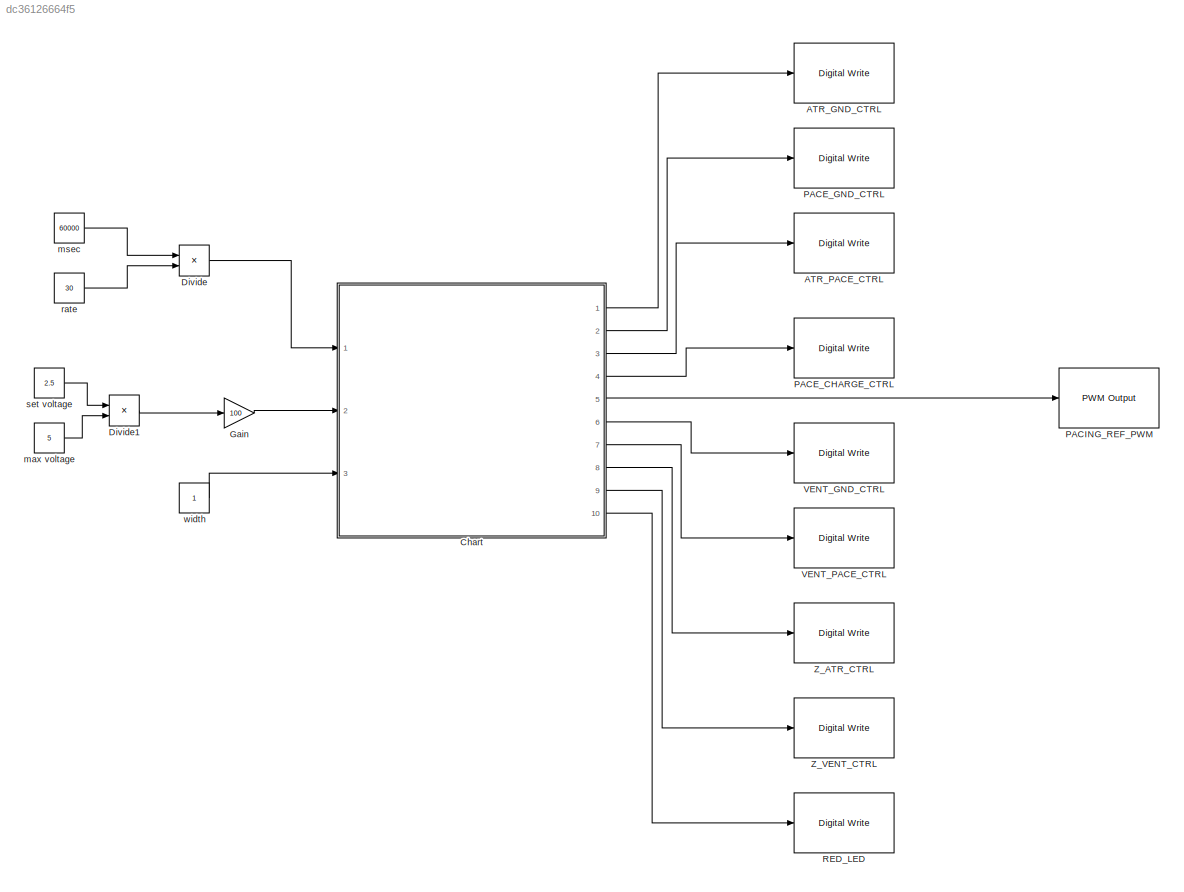
MODEL slx_dc36126664f5
KIND model
CONFIG AbsTol = auto
CONFIG EnableMultiTasking = on
CONFIG FixedStep = 1e-3
CONFIG MaxStep = auto
CONFIG MinStep = auto
CONFIG RelTol = 1e-3
CONFIG SampleTimeConstraint = Unconstrained
CONFIG Solver = FixedStepAuto
CONFIG SolverName = FixedStepAuto
CONFIG StartTime = 0.0
CONFIG StopTime = 10.0
BLOCK [Reference] ATR_GND_CTRL  REF=frdmk64flib/Digital Write
  Ports = [1]
  SourceBlock = frdmk64flib/Digital Write
  SourceProductBaseCode = EC_FRDM_K64F
  SourceType = freedomk64f.DigitalWrite
BLOCK [Reference] ATR_PACE_CTRL  REF=frdmk64flib/Digital Write
  Ports = [1]
  SourceBlock = frdmk64flib/Digital Write
  SourceProductBaseCode = EC_FRDM_K64F
  SourceType = freedomk64f.DigitalWrite
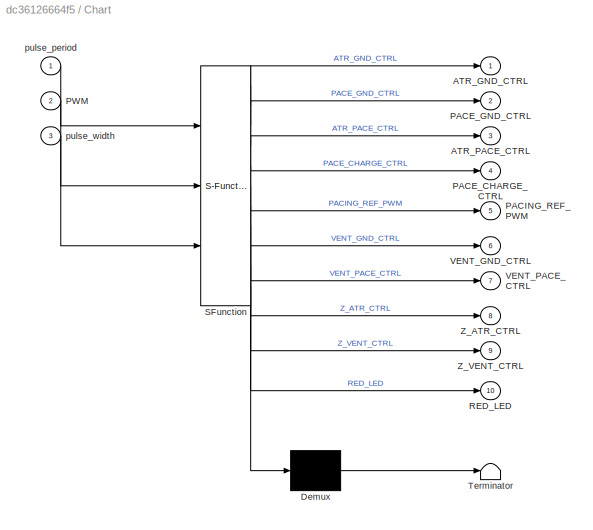
BLOCK [SubSystem] Chart
  ErrorFcn = Stateflow.Translate.translate
  PermitHierarchicalResolution = ExplicitOnly
  Ports = [3, 10]
  RequestExecContextInheritance = off
  SFBlockType = Chart
  TreatAsAtomicUnit = on
BLOCK [Demux] Chart/ Demux 
  Outputs = 1
  Ports = [1, 1]
BLOCK [S-Function] Chart/ SFunction 
  EnableBusSupport = on
  FunctionName = sf_sfun
  PortCounts = [3 11]
  Ports = [3, 11]
  SFcnIsStateOwnerBlock = off
  SFunctionDeploymentMode = off
  Tag = Stateflow S-Function 3
BLOCK [Terminator] Chart/ Terminator 
BLOCK [Outport] Chart/ATR_GND_CTRL
BLOCK [Outport] Chart/ATR_PACE_CTRL
  Port = 3
BLOCK [Outport] Chart/PACE_CHARGE_CTRL
  Port = 4
BLOCK [Outport] Chart/PACE_GND_CTRL
  Port = 2
BLOCK [Outport] Chart/PACING_REF_PWM
  Port = 5
BLOCK [Inport] Chart/PWM
  Port = 2
BLOCK [Outport] Chart/RED_LED
  Port = 10
BLOCK [Outport] Chart/VENT_GND_CTRL
  Port = 6
BLOCK [Outport] Chart/VENT_PACE_CTRL
  Port = 7
BLOCK [Outport] Chart/Z_ATR_CTRL
  Port = 8
BLOCK [Outport] Chart/Z_VENT_CTRL
  Port = 9
BLOCK [Inport] Chart/pulse_period
BLOCK [Inport] Chart/pulse_width
  Port = 3
BLOCK [Product] Divide
  Inputs = */
  Ports = [2, 1]
BLOCK [Product] Divide1
  Inputs = */
  Ports = [2, 1]
BLOCK [Gain] Gain
  Gain = 100
BLOCK [Reference] PACE_CHARGE_CTRL  REF=frdmk64flib/Digital Write
  Ports = [1]
  SourceBlock = frdmk64flib/Digital Write
  SourceProductBaseCode = EC_FRDM_K64F
  SourceType = freedomk64f.DigitalWrite
BLOCK [Reference] PACE_GND_CTRL  REF=frdmk64flib/Digital Write
  Ports = [1]
  SourceBlock = frdmk64flib/Digital Write
  SourceProductBaseCode = EC_FRDM_K64F
  SourceType = freedomk64f.DigitalWrite
BLOCK [Reference] PACING_REF_PWM  REF=frdmk64flib/PWM Output
  Ports = [1]
  SourceBlock = frdmk64flib/PWM Output
  SourceProductBaseCode = EC_FRDM_K64F
  SourceType = freedomk64f.PWMOutput
BLOCK [Reference] RED_LED  REF=frdmk64flib/Digital Write
  Ports = [1]
  SourceBlock = frdmk64flib/Digital Write
  SourceProductBaseCode = EC_FRDM_K64F
  SourceType = freedomk64f.DigitalWrite
BLOCK [Reference] VENT_GND_CTRL  REF=frdmk64flib/Digital Write
  Ports = [1]
  SourceBlock = frdmk64flib/Digital Write
  SourceProductBaseCode = EC_FRDM_K64F
  SourceType = freedomk64f.DigitalWrite
BLOCK [Reference] VENT_PACE_CTRL  REF=frdmk64flib/Digital Write
  Ports = [1]
  SourceBlock = frdmk64flib/Digital Write
  SourceProductBaseCode = EC_FRDM_K64F
  SourceType = freedomk64f.DigitalWrite
BLOCK [Reference] Z_ATR_CTRL  REF=frdmk64flib/Digital Write
  Ports = [1]
  SourceBlock = frdmk64flib/Digital Write
  SourceProductBaseCode = EC_FRDM_K64F
  SourceType = freedomk64f.DigitalWrite
BLOCK [Reference] Z_VENT_CTRL  REF=frdmk64flib/Digital Write
  Ports = [1]
  SourceBlock = frdmk64flib/Digital Write
  SourceProductBaseCode = EC_FRDM_K64F
  SourceType = freedomk64f.DigitalWrite
BLOCK [Constant] max voltage
  Value = 5
BLOCK [Constant] msec
  Value = 60000
BLOCK [Constant] rate
  Value = 30
BLOCK [Constant] set voltage
  Value = 2.5
BLOCK [Constant] width
LINE Chart:1 -> ATR_GND_CTRL:1
LINE Chart:10 -> RED_LED:1
LINE Chart:2 -> PACE_GND_CTRL:1
LINE Chart:3 -> ATR_PACE_CTRL:1
LINE Chart:4 -> PACE_CHARGE_CTRL:1
LINE Chart:5 -> PACING_REF_PWM:1
LINE Chart:6 -> VENT_GND_CTRL:1
LINE Chart:7 -> VENT_PACE_CTRL:1
LINE Chart:8 -> Z_ATR_CTRL:1
LINE Chart:9 -> Z_VENT_CTRL:1
LINE Divide1:1 -> Gain:1
LINE Divide:1 -> Chart:1
LINE Gain:1 -> Chart:2
LINE max voltage:1 -> Divide1:2
LINE msec:1 -> Divide:1
LINE rate:1 -> Divide:2
LINE set voltage:1 -> Divide1:1
LINE width:1 -> Chart:3
CHART Chart states=2 transitions=3
  STATE_LABEL 'ChargeDishcharge\nentry:\n%C22\nATR_PACE_CTRL = false;\nVENT_PACE_CTRL = false;\nPACING_REF_PWM = PWM;\nPACE_CHARGE_CTRL = true;\n%C21\nPACE_GND_CTRL = true;\nVENT_PACE_CTRL = false;\nZ_ATR_CTRL = false;\nZ_VENT_CTRL = false;\nATR_GND_CTRL = true;\nVENT_GND_CTRL = false;\n%RED LED\nRED_LED = false;\n'
  STATE_LABEL 'AVpacing\nentry:\nPACE_CHARGE_CTRL = false;\nPACE_GND_CTRL = true;\nATR_PACE_CTRL = true;\nATR_GND_CTRL = false;\nZ_ATR_CTRL = false;\nZ_VENT_CTRL = false;\nVENT_GND_CTRL = false;\nVENT_PACE_CTRL = false;\nPACING_REF_PWM = PWM;\nRED_LED = true;'
CHART  states=0 transitions=0
